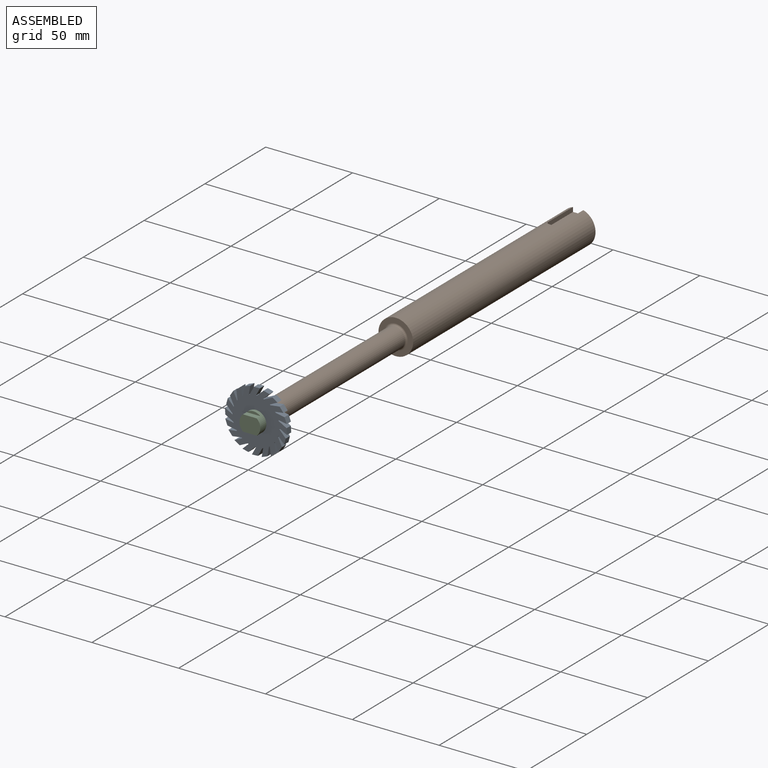
[diagram: assembled view]
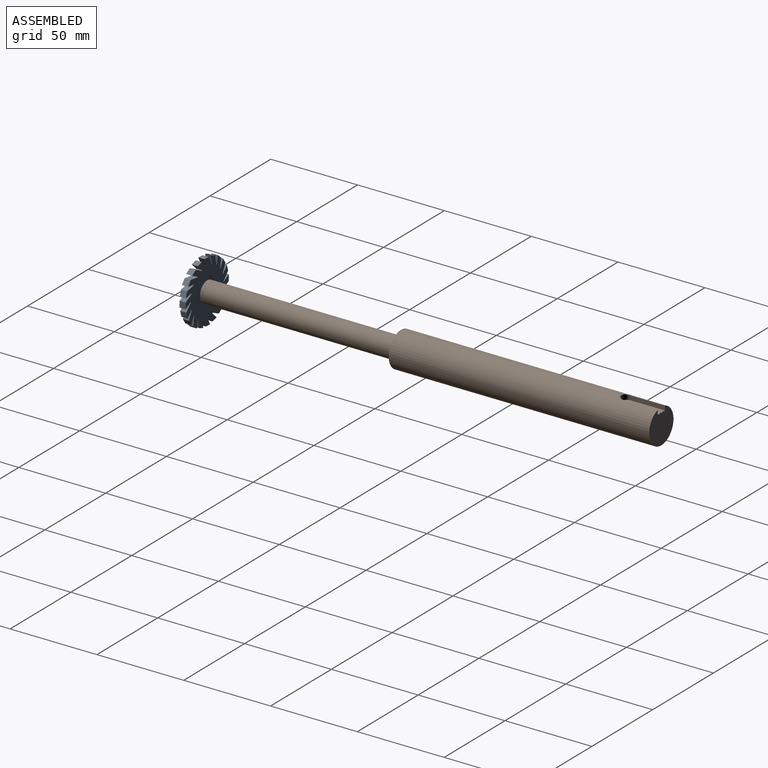
[diagram: assembled view, second angle]
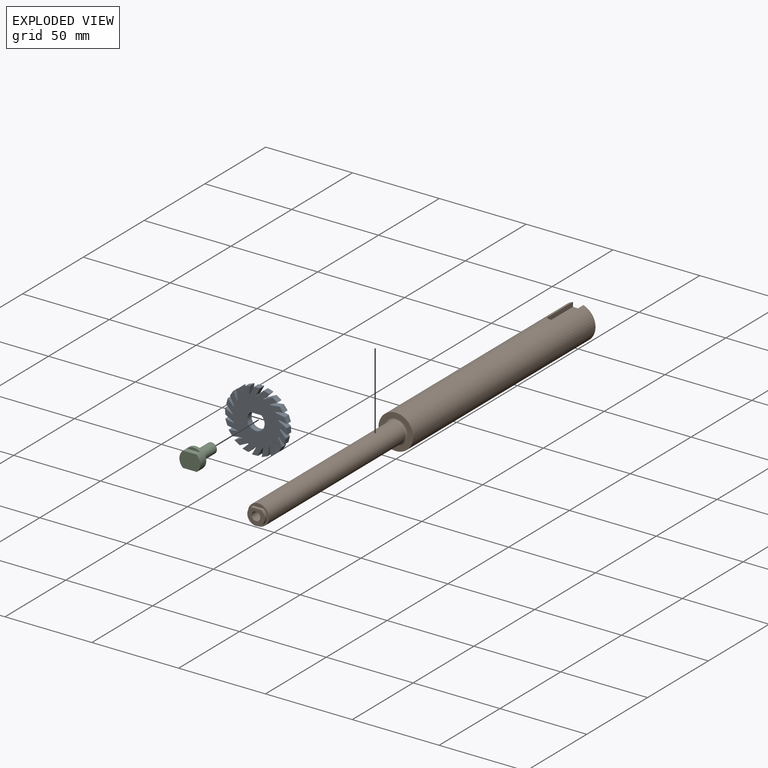
[diagram: exploded view]
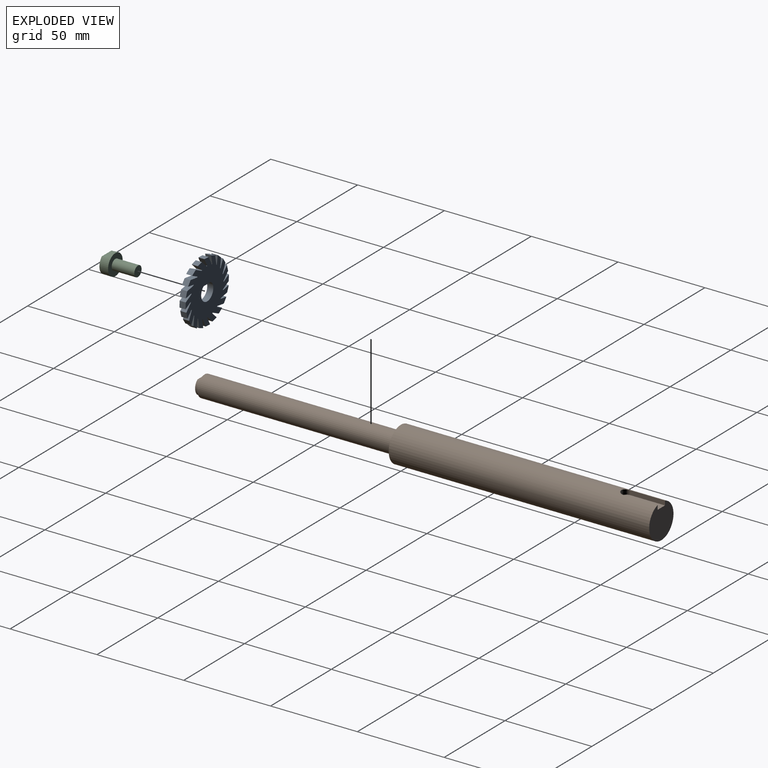
[diagram: exploded view, second angle]
ASSEMBLY  parts=3 mates=2
PART A: 84 faces, bbox 35.7x3.5x35.7 mm
  f0: plane 35.69x35.69mm, normal (0,-1,0), area 798.8mm2, adj f2,f3,f4,f5,f6,f7,f8,f9
  f1: plane 35.69x35.69mm, normal (0,1,0), area 798.8mm2, adj f2,f3,f4,f5,f6,f7,f8,f9
  f2: cylinder r=13.5mm len=3.5mm, axis (0,1,0), area 1.8mm2, adj f0,f1,f3,f81
  f3: plane 3.85x3.67mm, normal (0.69,0,0.72), area 18.6mm2, adj f0,f1,f2,f4
  f4: plane 3.5x3.38mm, normal (-0.26,0,0.97), area 12.3mm2, adj f0,f1,f3,f5
  f5: plane 3.58x3.5mm, normal (-0.69,0,-0.72), area 17.3mm2, adj f0,f1,f4,f6
  f6: cylinder r=13.5mm len=3.5mm, axis (0,1,0), area 1.8mm2, adj f0,f1,f5,f7
  f7: plane 4.8x3.5mm, normal (0.43,0,0.9), area 18.6mm2, adj f0,f1,f6,f8
  f8: plane 3.5x2.94mm, normal (-0.55,0,0.84), area 12.3mm2, adj f0,f1,f7,f9
  f9: plane 4.46x3.5mm, normal (-0.43,0,-0.9), area 17.3mm2, adj f0,f1,f8,f10
  f10: cylinder r=13.5mm len=3.5mm, axis (0,1,0), area 1.8mm2, adj f0,f1,f9,f11
  f11: plane 5.27x3.5mm, normal (0.13,0,0.99), area 18.6mm2, adj f0,f1,f10,f12
  f12: plane 3.5x2.73mm, normal (-0.78,0,0.63), area 12.3mm2, adj f0,f1,f11,f13
  f13: plane 4.9x3.5mm, normal (-0.13,0,-0.99), area 17.3mm2, adj f0,f1,f12,f14
  f14: cylinder r=13.5mm len=3.5mm, axis (0,1,0), area 1.8mm2, adj f0,f1,f13,f15
  f15: plane 5.23x3.5mm, normal (-0.18,0,0.98), area 18.6mm2, adj f0,f1,f14,f16
  f16: plane 3.5x3.27mm, normal (-0.93,0,0.36), area 12.3mm2, adj f0,f1,f15,f17
  f17: plane 4.86x3.5mm, normal (0.18,0,-0.98), area 17.3mm2, adj f0,f1,f16,f18
  f18: cylinder r=13.5mm len=3.5mm, axis (0,1,0), area 1.8mm2, adj f0,f1,f17,f19
  f19: plane 4.68x3.5mm, normal (-0.48,0,0.88), area 18.6mm2, adj f0,f1,f18,f20
  f20: plane 3.5x3.5mm, normal (-1,0,0.05), area 12.3mm2, adj f0,f1,f19,f21
  f21: plane 4.35x3.5mm, normal (0.48,0,-0.88), area 17.3mm2, adj f0,f1,f20,f22
  f22: cylinder r=13.5mm len=3.5mm, axis (0,1,0), area 1.8mm2, adj f0,f1,f21,f23
  f23: plane 3.85x3.67mm, normal (-0.72,0,0.69), area 18.6mm2, adj f0,f1,f22,f24
  f24: plane 3.5x3.38mm, normal (-0.97,0,-0.26), area 12.3mm2, adj f0,f1,f23,f25
  f25: plane 3.58x3.5mm, normal (0.72,0,-0.69), area 17.3mm2, adj f0,f1,f24,f26
  f26: cylinder r=13.5mm len=3.5mm, axis (0,1,0), area 1.8mm2, adj f0,f1,f25,f27
  f27: plane 4.8x3.5mm, normal (-0.9,0,0.43), area 18.6mm2, adj f0,f1,f26,f28
  f28: plane 3.5x2.94mm, normal (-0.84,0,-0.55), area 12.3mm2, adj f0,f1,f27,f29
  f29: plane 4.46x3.5mm, normal (0.9,0,-0.43), area 17.3mm2, adj f0,f1,f28,f30
  f30: cylinder r=13.5mm len=3.5mm, axis (0,1,0), area 1.8mm2, adj f0,f1,f29,f31
  f31: plane 5.27x3.5mm, normal (-0.99,0,0.13), area 18.6mm2, adj f0,f1,f30,f32
  f32: plane 3.5x2.73mm, normal (-0.63,0,-0.78), area 12.3mm2, adj f0,f1,f31,f33
  f33: plane 4.9x3.5mm, normal (0.99,0,-0.13), area 17.3mm2, adj f0,f1,f32,f34
  f34: cylinder r=13.5mm len=3.5mm, axis (0,1,0), area 1.8mm2, adj f0,f1,f33,f35
  f35: plane 5.23x3.5mm, normal (-0.98,0,-0.18), area 18.6mm2, adj f0,f1,f34,f36
  f36: plane 3.5x3.27mm, normal (-0.36,0,-0.93), area 12.3mm2, adj f0,f1,f35,f37
  f37: plane 4.86x3.5mm, normal (0.98,0,0.18), area 17.3mm2, adj f0,f1,f36,f38
  f38: cylinder r=13.5mm len=3.5mm, axis (0,1,0), area 1.8mm2, adj f0,f1,f37,f39
  f39: plane 4.68x3.5mm, normal (-0.88,0,-0.48), area 18.6mm2, adj f0,f1,f38,f40
  f40: plane 3.5x3.5mm, normal (-0.05,0,-1), area 12.3mm2, adj f0,f1,f39,f41
  f41: plane 4.35x3.5mm, normal (0.88,0,0.48), area 17.3mm2, adj f0,f1,f40,f42
  f42: cylinder r=13.5mm len=3.5mm, axis (0,1,0), area 1.8mm2, adj f0,f1,f41,f43
  f43: plane 3.85x3.67mm, normal (-0.69,0,-0.72), area 18.6mm2, adj f0,f1,f42,f44
  f44: plane 3.5x3.38mm, normal (0.26,0,-0.97), area 12.3mm2, adj f0,f1,f43,f45
  f45: plane 3.58x3.5mm, normal (0.69,0,0.72), area 17.3mm2, adj f0,f1,f44,f46
  f46: cylinder r=13.5mm len=3.5mm, axis (0,1,0), area 1.8mm2, adj f0,f1,f45,f47
  f47: plane 4.8x3.5mm, normal (-0.43,0,-0.9), area 18.6mm2, adj f0,f1,f46,f48
  f48: plane 3.5x2.94mm, normal (0.55,0,-0.84), area 12.3mm2, adj f0,f1,f47,f49
  f49: plane 4.46x3.5mm, normal (0.43,0,0.9), area 17.3mm2, adj f0,f1,f48,f50
  f50: cylinder r=13.5mm len=3.5mm, axis (0,1,0), area 1.8mm2, adj f0,f1,f49,f51
  f51: plane 5.27x3.5mm, normal (-0.13,0,-0.99), area 18.6mm2, adj f0,f1,f50,f52
  f52: plane 3.5x2.73mm, normal (0.78,0,-0.63), area 12.3mm2, adj f0,f1,f51,f53
  f53: plane 4.9x3.5mm, normal (0.13,0,0.99), area 17.3mm2, adj f0,f1,f52,f54
  f54: cylinder r=13.5mm len=3.5mm, axis (0,1,0), area 1.8mm2, adj f0,f1,f53,f55
  f55: plane 5.23x3.5mm, normal (0.18,0,-0.98), area 18.6mm2, adj f0,f1,f54,f56
  f56: plane 3.5x3.27mm, normal (0.93,0,-0.36), area 12.3mm2, adj f0,f1,f55,f57
  f57: plane 4.86x3.5mm, normal (-0.18,0,0.98), area 17.3mm2, adj f0,f1,f56,f58
  f58: cylinder r=13.5mm len=3.5mm, axis (0,1,0), area 1.8mm2, adj f0,f1,f57,f59
  f59: plane 4.68x3.5mm, normal (0.48,0,-0.88), area 18.6mm2, adj f0,f1,f58,f60
  f60: plane 3.5x3.5mm, normal (1,0,-0.05), area 12.3mm2, adj f0,f1,f59,f61
  f61: plane 4.35x3.5mm, normal (-0.48,0,0.88), area 17.3mm2, adj f0,f1,f60,f62
  f62: cylinder r=13.5mm len=3.5mm, axis (0,1,0), area 1.8mm2, adj f0,f1,f61,f63
  f63: plane 3.85x3.67mm, normal (0.72,0,-0.69), area 18.6mm2, adj f0,f1,f62,f64
  f64: plane 3.5x3.38mm, normal (0.97,0,0.26), area 12.3mm2, adj f0,f1,f63,f65
  f65: plane 3.58x3.5mm, normal (-0.72,0,0.69), area 17.3mm2, adj f0,f1,f64,f66
  f66: cylinder r=13.5mm len=3.5mm, axis (0,1,0), area 1.8mm2, adj f0,f1,f65,f67
  f67: plane 4.8x3.5mm, normal (0.9,0,-0.43), area 18.6mm2, adj f0,f1,f66,f68
  f68: plane 3.5x2.94mm, normal (0.84,0,0.55), area 12.3mm2, adj f0,f1,f67,f69
  f69: plane 4.46x3.5mm, normal (-0.9,0,0.43), area 17.3mm2, adj f0,f1,f68,f70
  f70: cylinder r=13.5mm len=3.5mm, axis (0,1,0), area 1.8mm2, adj f0,f1,f69,f71
  f71: plane 5.27x3.5mm, normal (0.99,0,-0.13), area 18.6mm2, adj f0,f1,f70,f72
  f72: plane 3.5x2.73mm, normal (0.63,0,0.78), area 12.3mm2, adj f0,f1,f71,f73
  f73: plane 4.9x3.5mm, normal (-0.99,0,0.13), area 17.3mm2, adj f0,f1,f72,f74
  f74: cylinder r=13.5mm len=3.5mm, axis (0,1,0), area 1.8mm2, adj f0,f1,f73,f75
  f75: plane 5.23x3.5mm, normal (0.98,0,0.18), area 18.6mm2, adj f0,f1,f74,f76
  f76: plane 3.5x3.27mm, normal (0.36,0,0.93), area 12.3mm2, adj f0,f1,f75,f77
  f77: plane 4.86x3.5mm, normal (-0.98,0,-0.18), area 17.3mm2, adj f0,f1,f76,f78
  f78: cylinder r=13.5mm len=3.5mm, axis (0,1,0), area 1.8mm2, adj f0,f1,f77,f79
  f79: plane 4.68x3.5mm, normal (0.88,0,0.48), area 18.6mm2, adj f0,f1,f78,f80
  f80: plane 3.5x3.5mm, normal (0.05,0,1), area 12.3mm2, adj f0,f1,f79,f81
  f81: plane 4.35x3.5mm, normal (-0.88,0,-0.48), area 17.3mm2, adj f0,f1,f2,f80
  f82: plane 6x3.5mm, normal (0,0,1), area 21mm2, adj f0,f1,f83
  f83: cylinder r=5mm len=10mm, axis (0,1,0), area 87.4mm2, adj f0,f1,f82
PART B: 15 faces, bbox 20x265x20 mm
  f0: cylinder r=6mm len=112mm, axis (0,-1,0), area 4222.3mm2, adj f8,f9
  f1: cylinder r=10mm len=150mm, axis (0,1,0), area 9288.6mm2, adj f2,f3,f4,f6,f7
  f2: plane 20x19.54mm, normal (0,1,0), area 297.1mm2, adj f1,f3,f4,f5
  f3: plane 20x2.54mm, normal (1,0,0), area 50.8mm2, adj f1,f2,f5,f6
  f4: plane 20x2.54mm, normal (-1,0,0), area 50.8mm2, adj f1,f2,f5,f6
  f5: plane 23x6mm, normal (0,0,1), area 134.1mm2, adj f2,f3,f4,f6
  f6: cylinder r=3mm len=6mm, axis (0,0,-1), area 26.1mm2, adj f1,f3,f4,f5
  f7: plane 20x20mm, normal (0,-1,0), area 160.2mm2, adj f1,f8
  f8: torus R=7mm, axis (0,-1,0), area 62.8mm2, adj f0,f7
  f9: plane 12x12mm, normal (0,-1,0), area 38.6mm2, adj f0,f10,f12
  f10: cylinder r=5mm len=10mm, axis (0,-1,0), area 50mm2, adj f9,f11,f12
  f11: plane 10x9mm, normal (0,-1,0), area 54.8mm2, adj f10,f12,f14
  f12: plane 6x2mm, normal (0,0,1), area 12mm2, adj f9,f10,f11
  f13: cone r=2.5mm half-angle=59deg, axis (0,-1,0), area 22.9mm2, adj f14
  f14: cylinder r=2.5mm len=15mm, axis (0,-1,0), area 235.6mm2, adj f11,f13
PART C: 9 faces, bbox 12x18x12 mm
  f0: cylinder r=6mm len=12mm, axis (0,1,0), area 136.5mm2, adj f1,f2,f5,f6,f7,f8
  f1: plane 12x9mm, normal (0,1,0), area 96.8mm2, adj f0,f5,f7
  f2: plane 12x12mm, normal (0,-1,0), area 84.8mm2, adj f0,f3
  f3: cylinder r=3mm len=13mm, axis (0,-1,0), area 245mm2, adj f2,f4
  f4: plane 6x6mm, normal (0,-1,0), area 28.3mm2, adj f3
  f5: plane 7.94x3mm, normal (0,0,1), area 23.8mm2, adj f0,f1,f6
  f6: plane 7.94x1.5mm, normal (0,1,0), area 8.2mm2, adj f0,f5
  f7: plane 7.94x3mm, normal (0,0,-1), area 23.8mm2, adj f0,f1,f8
  f8: plane 7.94x1.5mm, normal (0,1,0), area 8.2mm2, adj f0,f7
PLACE A rot(axis=(1,0,0),180deg) t=(0,-263.25,0)mm
PLACE B at identity
PLACE C rot(axis=(1,0,0),180deg) t=(0,-270,0)mm
MATE fastened C.f0 <-> B.f0  axis (0,1,0) through (0,-265,0)mm
MATE fastened A.f2 <-> B.f0  axis (0,-1,0) through (0,-265,0)mm
